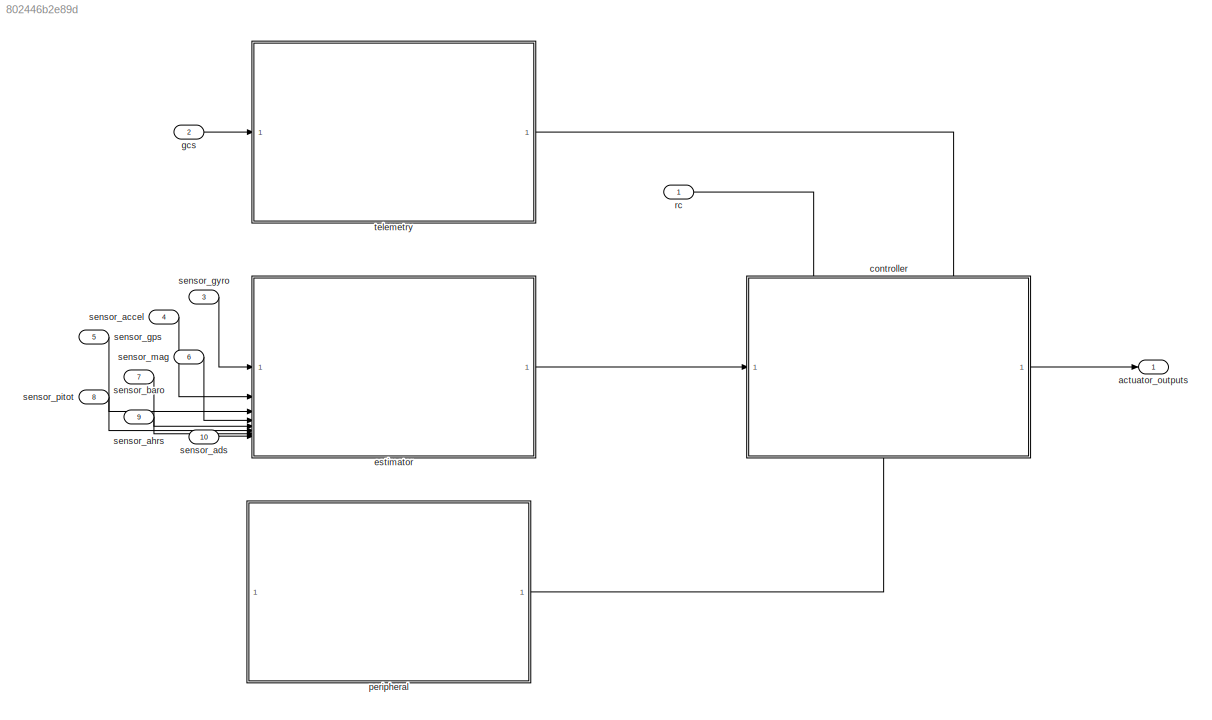
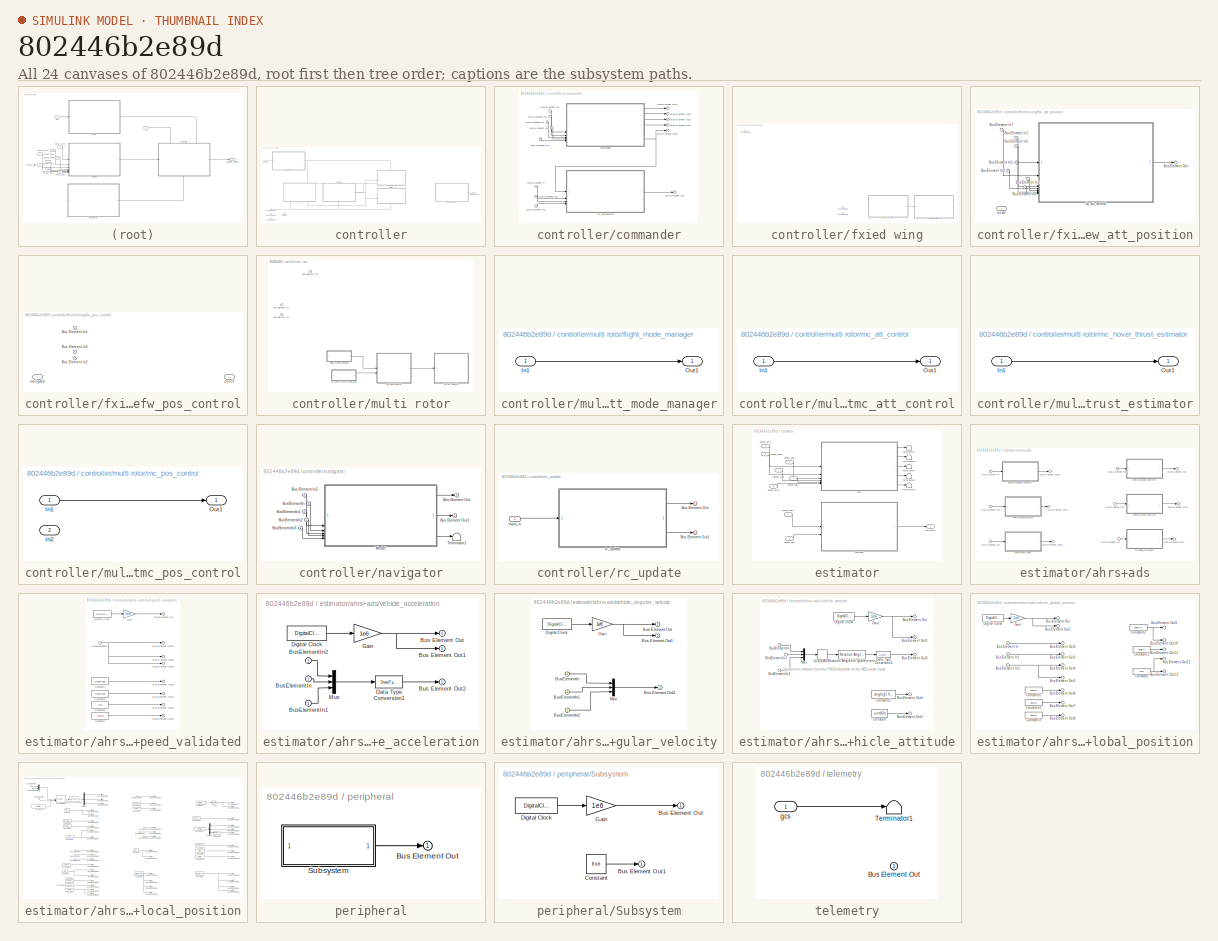
[diagram: thumbnail index - all 24 canvases of the model, root first then tree order]
MODEL slx_802446b2e89d
KIND model
CONFIG AbsTol = auto
CONFIG EnableMultiTasking = off
CONFIG FixedStep = 5/1000
CONFIG MaxStep = auto
CONFIG MinStep = auto
CONFIG RelTol = 1e-3
CONFIG SampleTimeConstraint = Unconstrained
CONFIG SolverName = FixedStepAuto
CONFIG StartTime = 0.0
CONFIG StopTime = inf
BLOCK [Outport] actuator_outputs
  OutDataTypeStr = Bus: actuator_outputs_s
BLOCK [SubSystem] controller
  PortSchema = {"entries":[{"content":{"sides":[{"content":{"connectorIds":["In1"]},"type":"ConnectorPlacement.EquallySpacedRectSide","uuid":"bf365a7c-3df9-4499-baf0-ac7c3d5a0a14"},{"content":{"connectorIds":["Out1"],"side":"RIGHT"},"type":"ConnectorPlacement.EquallySpacedRectSide","uuid":"09800274-c410-4406-8158-73f19ad533fb"},{"content":{"connectorIds":["In2","In3"],"side":"TOP"},"type":"ConnectorPlacement.Equ...<+400ch>
BLOCK [Inport] controller/Bus Element In
  Port = 3
BLOCK [Inport] controller/Bus Element In1
BLOCK [Inport] controller/Bus Element In3
  Port = 4
BLOCK [Terminator] controller/Terminator
BLOCK [Outport] controller/actuator_output
BLOCK [SubSystem] controller/commander
  PortSchema = {"entries":[{"content":{"sides":[{"content":{},"type":"ConnectorPlacement.EquallySpacedRectSide","uuid":"bf365a7c-3df9-4499-baf0-ac7c3d5a0a14"},{"content":{"side":"RIGHT"},"type":"ConnectorPlacement.EquallySpacedRectSide","uuid":"09800274-c410-4406-8158-73f19ad533fb"},{"content":{"connectorIds":["Out1","In1"],"side":"TOP"},"type":"ConnectorPlacement.EquallySpacedRectSide","uuid":"5f417270-ee37-4bc...<+361ch>
BLOCK [Inport] controller/commander/Bus Element In
  Port = 2
BLOCK [Inport] controller/commander/Bus Element In1
  Port = 2
BLOCK [Inport] controller/commander/Bus Element In2
  Port = 2
BLOCK [Inport] controller/commander/Bus Element In3
  Port = 2
BLOCK [Inport] controller/commander/Bus Element In4
  Port = 2
BLOCK [Inport] controller/commander/Bus Element In5
BLOCK [Inport] controller/commander/Bus Element In6
BLOCK [Inport] controller/commander/Bus Element In7
  Port = 3
BLOCK [Outport] controller/commander/Bus Element Out
BLOCK [Outport] controller/commander/Bus Element Out1
BLOCK [Outport] controller/commander/Bus Element Out2
BLOCK [Outport] controller/commander/Bus Element Out3
BLOCK [Outport] controller/commander/Bus Element Out4
BLOCK [Outport] controller/commander/Bus Element Out5
BLOCK [ModelReference] controller/commander/commander
  ModelNameDialog = commander
  ModelReferenceVersion = 1.352
BLOCK [ModelReference] controller/commander/fw_land_detector
  ModelNameDialog = fw_land_detector.slx
  ModelReferenceVersion = 1.18
BLOCK [ModelReference] controller/fw_simple_mixer
  ModelNameDialog = fw_mixer_output.slx
  ModelReferenceVersion = 1.12
BLOCK [SubSystem] controller/fxied wing
  PortSchema = {"entries":[{"content":{"sides":[{"content":{"connectorIds":["In1","In2"]},"type":"ConnectorPlacement.EquallySpacedRectSide","uuid":"549ec4b7-2508-487f-9311-741c2bb8d680"},{"content":{"side":"RIGHT"},"type":"ConnectorPlacement.EquallySpacedRectSide","uuid":"03f0fe2f-98b5-4ee1-8147-873b6008a7a5"},{"content":{"connectorIds":["In3"],"side":"TOP"},"type":"ConnectorPlacement.EquallySpacedRectSide","uui...<+227ch>
BLOCK [Inport] controller/fxied wing/Bus Element In1
  Port = 2
BLOCK [Inport] controller/fxied wing/Bus Element In2
  Port = 3
BLOCK [Inport] controller/fxied wing/Bus Element In3
BLOCK [SubSystem] controller/fxied wing/fw_att_position
  PortSchema = {"entries":[{"content":{"sides":[{"content":{"connectorIds":["In1"]},"type":"ConnectorPlacement.EquallySpacedRectSide","uuid":"2e5a2222-76bd-46c5-99d4-7bb5e8ecb6d7"},{"content":{"connectorIds":["Out1"],"side":"RIGHT"},"type":"ConnectorPlacement.EquallySpacedRectSide","uuid":"0e63d8b1-5138-4700-95dd-60b21314af32"},{"content":{"connectorIds":["In2","In3"],"side":"TOP"},"type":"ConnectorPlacement.Equ...<+400ch>
BLOCK [Inport] controller/fxied wing/fw_att_position/Bus Element In1
  Port = 2
BLOCK [Inport] controller/fxied wing/fw_att_position/Bus Element In2
  Port = 2
BLOCK [Inport] controller/fxied wing/fw_att_position/Bus Element In3
  Port = 4
BLOCK [Inport] controller/fxied wing/fw_att_position/Bus Element In4
  Port = 4
BLOCK [Inport] controller/fxied wing/fw_att_position/Bus Element In5
  Port = 4
BLOCK [Inport] controller/fxied wing/fw_att_position/Bus Element In6
  Port = 4
BLOCK [Inport] controller/fxied wing/fw_att_position/Bus Element In7
  Port = 3
BLOCK [Outport] controller/fxied wing/fw_att_position/Bus Element Out
BLOCK [ModelReference] controller/fxied wing/fw_att_position/fw_att_control
  ModelNameDialog = fw_att_control.slx
  ModelReferenceVersion = 1.81
  PortSchema = {"entries":[{"content":{"sides":[{"content":{"connectorIds":["In2","In1","In7","In3","In4","In5","In6","In8","In9"]},"type":"ConnectorPlacement.EquallySpacedRectSide","uuid":"a3897952-0f5d-4f6f-be91-4c088f77e763"},{"content":{"connectorIds":["Out1"],"side":"RIGHT"},"type":"ConnectorPlacement.EquallySpacedRectSide","uuid":"30e098fc-1ad2-4a2a-8a05-110c3be1e9a2"},{"content":{"side":"TOP"},"type":"Con...<+270ch>
BLOCK [Inport] controller/fxied wing/fw_att_position/posctr
BLOCK [SubSystem] controller/fxied wing/fw_pos_control
  PortSchema = {"entries":[{"content":{"sides":[{"content":{"connectorIds":["In1"]},"type":"ConnectorPlacement.EquallySpacedRectSide","uuid":"bf365a7c-3df9-4499-baf0-ac7c3d5a0a14"},{"content":{"connectorIds":["Out1"],"side":"RIGHT"},"type":"ConnectorPlacement.EquallySpacedRectSide","uuid":"09800274-c410-4406-8158-73f19ad533fb"},{"content":{"connectorIds":["In2","In3"],"side":"TOP"},"type":"ConnectorPlacement.Equ...<+400ch>
BLOCK [Inport] controller/fxied wing/fw_pos_control/Bus Element In1
  Port = 2
BLOCK [Inport] controller/fxied wing/fw_pos_control/Bus Element In2
  Port = 3
BLOCK [Inport] controller/fxied wing/fw_pos_control/Bus Element In3
  Port = 4
BLOCK [Inport] controller/fxied wing/fw_pos_control/navigator
BLOCK [Outport] controller/fxied wing/fw_pos_control/posctr
BLOCK [Inport] controller/input_rc
  Port = 2
BLOCK [SubSystem] controller/multi rotor
  PortSchema = {"entries":[{"content":{"sides":[{"content":{"connectorIds":["In1","In2"]},"type":"ConnectorPlacement.EquallySpacedRectSide","uuid":"549ec4b7-2508-487f-9311-741c2bb8d680"},{"content":{"side":"RIGHT"},"type":"ConnectorPlacement.EquallySpacedRectSide","uuid":"03f0fe2f-98b5-4ee1-8147-873b6008a7a5"},{"content":{"side":"TOP"},"type":"ConnectorPlacement.EquallySpacedRectSide","uuid":"13073dc7-cc1f-4414-...<+353ch>
BLOCK [Inport] controller/multi rotor/Bus Element In1
  Port = 2
BLOCK [Inport] controller/multi rotor/Bus Element In2
  Port = 3
BLOCK [Inport] controller/multi rotor/Bus Element In3
BLOCK [SubSystem] controller/multi rotor/flight_mode_manager
BLOCK [Inport] controller/multi rotor/flight_mode_manager/In1
BLOCK [Outport] controller/multi rotor/flight_mode_manager/Out1
BLOCK [SubSystem] controller/multi rotor/mc_att_control
BLOCK [Inport] controller/multi rotor/mc_att_control/In1
BLOCK [Outport] controller/multi rotor/mc_att_control/Out1
BLOCK [SubSystem] controller/multi rotor/mc_hover_thrust_estimator
BLOCK [Inport] controller/multi rotor/mc_hover_thrust_estimator/In1
BLOCK [Outport] controller/multi rotor/mc_hover_thrust_estimator/Out1
BLOCK [SubSystem] controller/multi rotor/mc_pos_control
BLOCK [Inport] controller/multi rotor/mc_pos_control/In1
BLOCK [Inport] controller/multi rotor/mc_pos_control/In2
  Port = 2
BLOCK [Outport] controller/multi rotor/mc_pos_control/Out1
BLOCK [SubSystem] controller/navigator
  PortSchema = {"entries":[{"content":{"sides":[{"content":{},"type":"ConnectorPlacement.EquallySpacedRectSide","uuid":"bf365a7c-3df9-4499-baf0-ac7c3d5a0a14"},{"content":{"connectorIds":["Out1"],"side":"RIGHT"},"type":"ConnectorPlacement.EquallySpacedRectSide","uuid":"09800274-c410-4406-8158-73f19ad533fb"},{"content":{"connectorIds":["In1"],"side":"TOP"},"type":"ConnectorPlacement.EquallySpacedRectSide","uuid":"...<+372ch>
BLOCK [Inport] controller/navigator/Bus Element In2
  Port = 2
BLOCK [Outport] controller/navigator/Bus Element Out
BLOCK [Outport] controller/navigator/Bus Element Out1
BLOCK [Inport] controller/navigator/BusElementIn
  Port = 2
BLOCK [Inport] controller/navigator/BusElementIn1
BLOCK [Inport] controller/navigator/BusElementIn2
BLOCK [Inport] controller/navigator/BusElementIn3
BLOCK [ModelReference] controller/navigator/Model
  ModelNameDialog = navigator
  ModelReferenceVersion = 8.346
  PortSchema = {"entries":[{"content":{"sides":[{"content":{"connectorIds":["In1","In2","In3","In4","In5","In7","In6","In8"]},"type":"ConnectorPlacement.EquallySpacedRectSide","uuid":"8fdc0db3-4faf-4964-996f-bada078e6ff8"},{"content":{"connectorIds":["Out1","Out2","Out3"],"side":"RIGHT"},"type":"ConnectorPlacement.EquallySpacedRectSide","uuid":"b0bd679b-9745-48c6-a927-6af964e70cab"},{"content":{"side":"TOP"},"ty...<+278ch>
BLOCK [Terminator] controller/navigator/Terminator1
BLOCK [SubSystem] controller/rc_update
BLOCK [Outport] controller/rc_update/Bus Element Out
BLOCK [Outport] controller/rc_update/Bus Element Out1
BLOCK [Inport] controller/rc_update/input_rc
BLOCK [ModelReference] controller/rc_update/rc_update
  ModelNameDialog = rc_update
  ModelReferenceVersion = 8.39
BLOCK [SubSystem] estimator
BLOCK [Terminator] estimator/Terminator2
BLOCK [Terminator] estimator/Terminator3
BLOCK [Terminator] estimator/Terminator4
BLOCK [Terminator] estimator/Terminator5
BLOCK [Terminator] estimator/Terminator6
BLOCK [SubSystem] estimator/ahrs+ads
BLOCK [Inport] estimator/ahrs+ads/Bus Element In
BLOCK [Inport] estimator/ahrs+ads/Bus Element In1
  Port = 2
BLOCK [Inport] estimator/ahrs+ads/Bus Element In2
BLOCK [Inport] estimator/ahrs+ads/Bus Element In3
BLOCK [Inport] estimator/ahrs+ads/Bus Element In4
BLOCK [Inport] estimator/ahrs+ads/Bus Element In5
BLOCK [Outport] estimator/ahrs+ads/Bus Element Out
BLOCK [Outport] estimator/ahrs+ads/Bus Element Out1
BLOCK [Outport] estimator/ahrs+ads/Bus Element Out2
BLOCK [Outport] estimator/ahrs+ads/Bus Element Out3
BLOCK [Outport] estimator/ahrs+ads/Bus Element Out4
BLOCK [Outport] estimator/ahrs+ads/Bus Element Out5
BLOCK [SubSystem] estimator/ahrs+ads/airspeed_validated
BLOCK [Outport] estimator/ahrs+ads/airspeed_validated/Bus Element Out
BLOCK [Outport] estimator/ahrs+ads/airspeed_validated/Bus Element Out27
BLOCK [Outport] estimator/ahrs+ads/airspeed_validated/Bus Element Out28
BLOCK [Outport] estimator/ahrs+ads/airspeed_validated/Bus Element Out29
BLOCK [Outport] estimator/ahrs+ads/airspeed_validated/Bus Element Out30
BLOCK [Outport] estimator/ahrs+ads/airspeed_validated/Bus Element Out31
BLOCK [Outport] estimator/ahrs+ads/airspeed_validated/Bus Element Out32
BLOCK [Outport] estimator/ahrs+ads/airspeed_validated/Bus Element Out33
BLOCK [Inport] estimator/ahrs+ads/airspeed_validated/BusElementIn
BLOCK [Constant] estimator/ahrs+ads/airspeed_validated/Constant1
  Value = single(nan)
BLOCK [Constant] estimator/ahrs+ads/airspeed_validated/Constant5
  Value = single(nan)
BLOCK [Constant] estimator/ahrs+ads/airspeed_validated/Constant6
  Value = true
BLOCK [Constant] estimator/ahrs+ads/airspeed_validated/Constant7
  Value = int8(0)
BLOCK [DigitalClock] estimator/ahrs+ads/airspeed_validated/Digital Clock
BLOCK [Gain] estimator/ahrs+ads/airspeed_validated/Gain
  Gain = 1e6
  OutDataTypeStr = uint64
BLOCK [SubSystem] estimator/ahrs+ads/vehicle_acceleration
BLOCK [Outport] estimator/ahrs+ads/vehicle_acceleration/Bus Element Out
BLOCK [Outport] estimator/ahrs+ads/vehicle_acceleration/Bus Element Out1
BLOCK [Outport] estimator/ahrs+ads/vehicle_acceleration/Bus Element Out2
BLOCK [Inport] estimator/ahrs+ads/vehicle_acceleration/BusElementIn
BLOCK [Inport] estimator/ahrs+ads/vehicle_acceleration/BusElementIn1
BLOCK [Inport] estimator/ahrs+ads/vehicle_acceleration/BusElementIn2
BLOCK [DataTypeConversion] estimator/ahrs+ads/vehicle_acceleration/Data Type Conversion1
  OutDataTypeStr = single
  RndMeth = Floor
  SaturateOnIntegerOverflow = off
BLOCK [DigitalClock] estimator/ahrs+ads/vehicle_acceleration/Digital Clock
BLOCK [Gain] estimator/ahrs+ads/vehicle_acceleration/Gain
  Gain = 1e6
  OutDataTypeStr = uint64
BLOCK [Mux] estimator/ahrs+ads/vehicle_acceleration/Mux
  DisplayOption = bar
  Inputs = 3
BLOCK [SubSystem] estimator/ahrs+ads/vehicle_angular_velocity
BLOCK [Outport] estimator/ahrs+ads/vehicle_angular_velocity/Bus Element Out
BLOCK [Outport] estimator/ahrs+ads/vehicle_angular_velocity/Bus Element Out1
BLOCK [Outport] estimator/ahrs+ads/vehicle_angular_velocity/Bus Element Out2
BLOCK [Inport] estimator/ahrs+ads/vehicle_angular_velocity/BusElementIn
BLOCK [Inport] estimator/ahrs+ads/vehicle_angular_velocity/BusElementIn1
BLOCK [Inport] estimator/ahrs+ads/vehicle_angular_velocity/BusElementIn2
BLOCK [DigitalClock] estimator/ahrs+ads/vehicle_angular_velocity/Digital Clock
BLOCK [Gain] estimator/ahrs+ads/vehicle_angular_velocity/Gain
  Gain = 1e6
  OutDataTypeStr = uint64
BLOCK [Mux] estimator/ahrs+ads/vehicle_angular_velocity/Mux
  DisplayOption = bar
  Inputs = 3
BLOCK [SubSystem] estimator/ahrs+ads/vehicle_attitude
BLOCK [Outport] estimator/ahrs+ads/vehicle_attitude/Bus Element Out
BLOCK [Outport] estimator/ahrs+ads/vehicle_attitude/Bus Element Out1
BLOCK [Outport] estimator/ahrs+ads/vehicle_attitude/Bus Element Out3
BLOCK [Outport] estimator/ahrs+ads/vehicle_attitude/Bus Element Out4
BLOCK [Outport] estimator/ahrs+ads/vehicle_attitude/Bus Element Out5
BLOCK [Inport] estimator/ahrs+ads/vehicle_attitude/BusElementIn
BLOCK [Inport] estimator/ahrs+ads/vehicle_attitude/BusElementIn1
BLOCK [Inport] estimator/ahrs+ads/vehicle_attitude/BusElementIn2
BLOCK [Constant] estimator/ahrs+ads/vehicle_attitude/Constant
  Value = uint8(0)
BLOCK [Constant] estimator/ahrs+ads/vehicle_attitude/Constant1
  Value = single([1 0 0 0])
BLOCK [DataTypeConversion] estimator/ahrs+ads/vehicle_attitude/Data Type Conversion1
  OutDataTypeStr = single
  RndMeth = Floor
  SaturateOnIntegerOverflow = off
BLOCK [DigitalClock] estimator/ahrs+ads/vehicle_attitude/Digital Clock
BLOCK [Gain] estimator/ahrs+ads/vehicle_attitude/Gain
  Gain = 1e6
  OutDataTypeStr = uint64
BLOCK [Mux] estimator/ahrs+ads/vehicle_attitude/Mux
  DisplayOption = bar
  Inputs = 3
BLOCK [Reference] estimator/ahrs+ads/vehicle_attitude/Rotation Angles to Quaternions  REF=sharedtransform/Rotation Angles to Quaternions
  AttributesFormatString = Rotation Order: %<rotationOrder>
  SourceBlock = sharedtransform/Rotation Angles to Quaternions
  SourceType = Ang2Quat
BLOCK [UnaryMinus] estimator/ahrs+ads/vehicle_attitude/Unary Minus
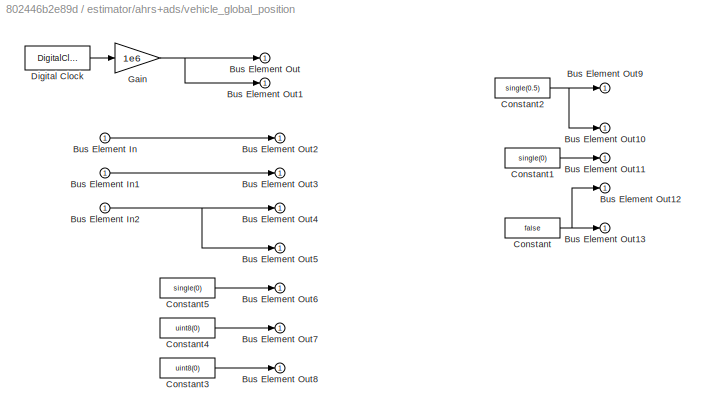
BLOCK [SubSystem] estimator/ahrs+ads/vehicle_global_position
BLOCK [Inport] estimator/ahrs+ads/vehicle_global_position/Bus Element In
BLOCK [Inport] estimator/ahrs+ads/vehicle_global_position/Bus Element In1
BLOCK [Inport] estimator/ahrs+ads/vehicle_global_position/Bus Element In2
BLOCK [Outport] estimator/ahrs+ads/vehicle_global_position/Bus Element Out
BLOCK [Outport] estimator/ahrs+ads/vehicle_global_position/Bus Element Out1
BLOCK [Outport] estimator/ahrs+ads/vehicle_global_position/Bus Element Out10
BLOCK [Outport] estimator/ahrs+ads/vehicle_global_position/Bus Element Out11
BLOCK [Outport] estimator/ahrs+ads/vehicle_global_position/Bus Element Out12
BLOCK [Outport] estimator/ahrs+ads/vehicle_global_position/Bus Element Out13
BLOCK [Outport] estimator/ahrs+ads/vehicle_global_position/Bus Element Out2
BLOCK [Outport] estimator/ahrs+ads/vehicle_global_position/Bus Element Out3
BLOCK [Outport] estimator/ahrs+ads/vehicle_global_position/Bus Element Out4
BLOCK [Outport] estimator/ahrs+ads/vehicle_global_position/Bus Element Out5
BLOCK [Outport] estimator/ahrs+ads/vehicle_global_position/Bus Element Out6
BLOCK [Outport] estimator/ahrs+ads/vehicle_global_position/Bus Element Out7
BLOCK [Outport] estimator/ahrs+ads/vehicle_global_position/Bus Element Out8
BLOCK [Outport] estimator/ahrs+ads/vehicle_global_position/Bus Element Out9
BLOCK [Constant] estimator/ahrs+ads/vehicle_global_position/Constant
  Value = false
BLOCK [Constant] estimator/ahrs+ads/vehicle_global_position/Constant1
  Value = single(0)
BLOCK [Constant] estimator/ahrs+ads/vehicle_global_position/Constant2
  Value = single(0.5)
BLOCK [Constant] estimator/ahrs+ads/vehicle_global_position/Constant3
  Value = uint8(0)
BLOCK [Constant] estimator/ahrs+ads/vehicle_global_position/Constant4
  Value = uint8(0)
BLOCK [Constant] estimator/ahrs+ads/vehicle_global_position/Constant5
  Value = single(0)
BLOCK [DigitalClock] estimator/ahrs+ads/vehicle_global_position/Digital Clock
BLOCK [Gain] estimator/ahrs+ads/vehicle_global_position/Gain
  Gain = 1e6
  OutDataTypeStr = uint64
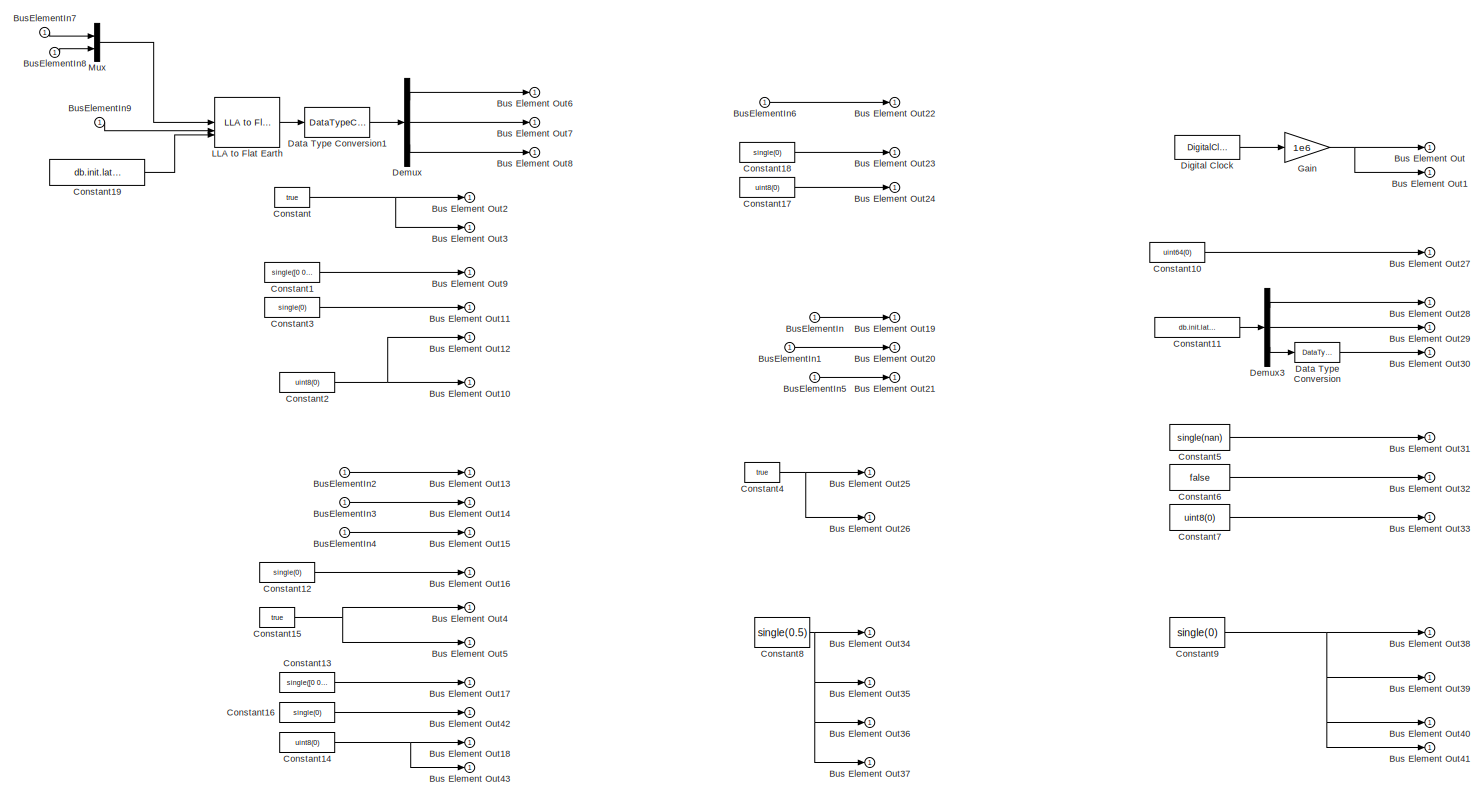
[diagram: estimator/ahrs+ads/vehicle_local_position - part 1/1, most of the canvas]
BLOCK [SubSystem] estimator/ahrs+ads/vehicle_local_position
BLOCK [Outport] estimator/ahrs+ads/vehicle_local_position/Bus Element Out
BLOCK [Outport] estimator/ahrs+ads/vehicle_local_position/Bus Element Out1
BLOCK [Outport] estimator/ahrs+ads/vehicle_local_position/Bus Element Out10
BLOCK [Outport] estimator/ahrs+ads/vehicle_local_position/Bus Element Out11
BLOCK [Outport] estimator/ahrs+ads/vehicle_local_position/Bus Element Out12
BLOCK [Outport] estimator/ahrs+ads/vehicle_local_position/Bus Element Out13
BLOCK [Outport] estimator/ahrs+ads/vehicle_local_position/Bus Element Out14
BLOCK [Outport] estimator/ahrs+ads/vehicle_local_position/Bus Element Out15
BLOCK [Outport] estimator/ahrs+ads/vehicle_local_position/Bus Element Out16
BLOCK [Outport] estimator/ahrs+ads/vehicle_local_position/Bus Element Out17
BLOCK [Outport] estimator/ahrs+ads/vehicle_local_position/Bus Element Out18
BLOCK [Outport] estimator/ahrs+ads/vehicle_local_position/Bus Element Out19
BLOCK [Outport] estimator/ahrs+ads/vehicle_local_position/Bus Element Out2
BLOCK [Outport] estimator/ahrs+ads/vehicle_local_position/Bus Element Out20
BLOCK [Outport] estimator/ahrs+ads/vehicle_local_position/Bus Element Out21
BLOCK [Outport] estimator/ahrs+ads/vehicle_local_position/Bus Element Out22
BLOCK [Outport] estimator/ahrs+ads/vehicle_local_position/Bus Element Out23
BLOCK [Outport] estimator/ahrs+ads/vehicle_local_position/Bus Element Out24
BLOCK [Outport] estimator/ahrs+ads/vehicle_local_position/Bus Element Out25
BLOCK [Outport] estimator/ahrs+ads/vehicle_local_position/Bus Element Out26
BLOCK [Outport] estimator/ahrs+ads/vehicle_local_position/Bus Element Out27
BLOCK [Outport] estimator/ahrs+ads/vehicle_local_position/Bus Element Out28
BLOCK [Outport] estimator/ahrs+ads/vehicle_local_position/Bus Element Out29
BLOCK [Outport] estimator/ahrs+ads/vehicle_local_position/Bus Element Out3
BLOCK [Outport] estimator/ahrs+ads/vehicle_local_position/Bus Element Out30
BLOCK [Outport] estimator/ahrs+ads/vehicle_local_position/Bus Element Out31
BLOCK [Outport] estimator/ahrs+ads/vehicle_local_position/Bus Element Out32
BLOCK [Outport] estimator/ahrs+ads/vehicle_local_position/Bus Element Out33
BLOCK [Outport] estimator/ahrs+ads/vehicle_local_position/Bus Element Out34
BLOCK [Outport] estimator/ahrs+ads/vehicle_local_position/Bus Element Out35
BLOCK [Outport] estimator/ahrs+ads/vehicle_local_position/Bus Element Out36
BLOCK [Outport] estimator/ahrs+ads/vehicle_local_position/Bus Element Out37
BLOCK [Outport] estimator/ahrs+ads/vehicle_local_position/Bus Element Out38
BLOCK [Outport] estimator/ahrs+ads/vehicle_local_position/Bus Element Out39
BLOCK [Outport] estimator/ahrs+ads/vehicle_local_position/Bus Element Out4
BLOCK [Outport] estimator/ahrs+ads/vehicle_local_position/Bus Element Out40
BLOCK [Outport] estimator/ahrs+ads/vehicle_local_position/Bus Element Out41
BLOCK [Outport] estimator/ahrs+ads/vehicle_local_position/Bus Element Out42
BLOCK [Outport] estimator/ahrs+ads/vehicle_local_position/Bus Element Out43
BLOCK [Outport] estimator/ahrs+ads/vehicle_local_position/Bus Element Out5
BLOCK [Outport] estimator/ahrs+ads/vehicle_local_position/Bus Element Out6
BLOCK [Outport] estimator/ahrs+ads/vehicle_local_position/Bus Element Out7
BLOCK [Outport] estimator/ahrs+ads/vehicle_local_position/Bus Element Out8
BLOCK [Outport] estimator/ahrs+ads/vehicle_local_position/Bus Element Out9
BLOCK [Inport] estimator/ahrs+ads/vehicle_local_position/BusElementIn
BLOCK [Inport] estimator/ahrs+ads/vehicle_local_position/BusElementIn1
BLOCK [Inport] estimator/ahrs+ads/vehicle_local_position/BusElementIn2
BLOCK [Inport] estimator/ahrs+ads/vehicle_local_position/BusElementIn3
BLOCK [Inport] estimator/ahrs+ads/vehicle_local_position/BusElementIn4
BLOCK [Inport] estimator/ahrs+ads/vehicle_local_position/BusElementIn5
BLOCK [Inport] estimator/ahrs+ads/vehicle_local_position/BusElementIn6
BLOCK [Inport] estimator/ahrs+ads/vehicle_local_position/BusElementIn7
BLOCK [Inport] estimator/ahrs+ads/vehicle_local_position/BusElementIn8
BLOCK [Inport] estimator/ahrs+ads/vehicle_local_position/BusElementIn9
BLOCK [Constant] estimator/ahrs+ads/vehicle_local_position/Constant
  Value = true
BLOCK [Constant] estimator/ahrs+ads/vehicle_local_position/Constant1
  Value = single([0 0])
BLOCK [Constant] estimator/ahrs+ads/vehicle_local_position/Constant10
  Value = uint64(0)
BLOCK [Constant] estimator/ahrs+ads/vehicle_local_position/Constant11
  Value = db.init.lat_lon_alt
BLOCK [Constant] estimator/ahrs+ads/vehicle_local_position/Constant12
  Value = single(0)
BLOCK [Constant] estimator/ahrs+ads/vehicle_local_position/Constant13
  Value = single([0 0])
BLOCK [Constant] estimator/ahrs+ads/vehicle_local_position/Constant14
  Value = uint8(0)
BLOCK [Constant] estimator/ahrs+ads/vehicle_local_position/Constant15
  Value = true
BLOCK [Constant] estimator/ahrs+ads/vehicle_local_position/Constant16
  Value = single(0)
BLOCK [Constant] estimator/ahrs+ads/vehicle_local_position/Constant17
  Value = uint8(0)
BLOCK [Constant] estimator/ahrs+ads/vehicle_local_position/Constant18
  Value = single(0)
BLOCK [Constant] estimator/ahrs+ads/vehicle_local_position/Constant19
  Value = db.init.lat_lon_alt(3)
BLOCK [Constant] estimator/ahrs+ads/vehicle_local_position/Constant2
  Value = uint8(0)
BLOCK [Constant] estimator/ahrs+ads/vehicle_local_position/Constant3
  Value = single(0)
BLOCK [Constant] estimator/ahrs+ads/vehicle_local_position/Constant4
  Value = true
BLOCK [Constant] estimator/ahrs+ads/vehicle_local_position/Constant5
  Value = single(nan)
BLOCK [Constant] estimator/ahrs+ads/vehicle_local_position/Constant6
  Value = false
BLOCK [Constant] estimator/ahrs+ads/vehicle_local_position/Constant7
  Value = uint8(0)
BLOCK [Constant] estimator/ahrs+ads/vehicle_local_position/Constant8
  Value = single(0.5)
BLOCK [Constant] estimator/ahrs+ads/vehicle_local_position/Constant9
  Value = single(0)
BLOCK [DataTypeConversion] estimator/ahrs+ads/vehicle_local_position/Data Type Conversion
  OutDataTypeStr = single
  RndMeth = Floor
  SaturateOnIntegerOverflow = off
BLOCK [DataTypeConversion] estimator/ahrs+ads/vehicle_local_position/Data Type Conversion1
  OutDataTypeStr = single
  RndMeth = Floor
  SaturateOnIntegerOverflow = off
BLOCK [Demux] estimator/ahrs+ads/vehicle_local_position/Demux
  Outputs = 3
BLOCK [Demux] estimator/ahrs+ads/vehicle_local_position/Demux3
  Outputs = 3
BLOCK [DigitalClock] estimator/ahrs+ads/vehicle_local_position/Digital Clock
BLOCK [Gain] estimator/ahrs+ads/vehicle_local_position/Gain
  Gain = 1e6
  OutDataTypeStr = uint64
BLOCK [Reference] estimator/ahrs+ads/vehicle_local_position/LLA to Flat Earth  REF=aerolibtransform2/LLA to Flat Earth
  SourceBlock = aerolibtransform2/LLA to Flat Earth
  SourceType = LLA to Flat Earth
BLOCK [Mux] estimator/ahrs+ads/vehicle_local_position/Mux
  DisplayOption = bar
  Inputs = 2
BLOCK [ModelReference] estimator/ekf2
  ModelNameDialog = ekf2.slx
  ModelReferenceVersion = 1.16
  PortSchema = {"entries":[{"content":{"sides":[{"content":{"connectorIds":["In1","In2","In3","In4","In5","In6"]},"type":"ConnectorPlacement.EquallySpacedRectSide","uuid":"530c6754-b0c0-41ce-ae9a-e56605d3448f"},{"content":{"connectorIds":["Out1","Out2","Out3","Out5","Out4"],"side":"RIGHT"},"type":"ConnectorPlacement.EquallySpacedRectSide","uuid":"c5c6cdfe-97c8-4b0f-ac33-5a0cc586973e"},{"content":{"side":"TOP"},"...<+280ch>
BLOCK [Outport] estimator/estimator
BLOCK [Inport] estimator/sensor_accel
  Port = 2
BLOCK [Inport] estimator/sensor_ads
  Port = 8
BLOCK [Inport] estimator/sensor_ahrs
  Port = 7
BLOCK [Inport] estimator/sensor_baro
  Port = 5
BLOCK [Inport] estimator/sensor_gps
  Port = 3
BLOCK [Inport] estimator/sensor_gyro
BLOCK [Inport] estimator/sensor_mag
  Port = 4
BLOCK [Inport] estimator/sensor_pitot
  Port = 6
BLOCK [Inport] gcs
  Port = 2
BLOCK [SubSystem] peripheral
BLOCK [Outport] peripheral/Bus Element Out
BLOCK [SubSystem] peripheral/Subsystem
BLOCK [Outport] peripheral/Subsystem/Bus Element Out
BLOCK [Outport] peripheral/Subsystem/Bus Element Out1
BLOCK [Constant] peripheral/Subsystem/Constant
  Value = true
BLOCK [DigitalClock] peripheral/Subsystem/Digital Clock
BLOCK [Gain] peripheral/Subsystem/Gain
  Gain = 1e6
  OutDataTypeStr = uint64
BLOCK [Inport] rc
  OutDataTypeStr = Bus: input_rc_s
BLOCK [Inport] sensor_accel
  NameLocation = left
  OutDataTypeStr = Bus: sensor_accel_s
  Port = 4
BLOCK [Inport] sensor_ads
  NameLocation = left
  OutDataTypeStr = Bus: sensor_ads_s
  Port = 10
BLOCK [Inport] sensor_ahrs
  NameLocation = left
  OutDataTypeStr = Bus: sensor_ahrs_s
  Port = 9
BLOCK [Inport] sensor_baro
  NameLocation = left
  OutDataTypeStr = Bus: sensor_baro_s
  Port = 7
BLOCK [Inport] sensor_gps
  NameLocation = left
  OutDataTypeStr = Bus: sensor_gps_s
  Port = 5
BLOCK [Inport] sensor_gyro
  NameLocation = left
  OutDataTypeStr = Bus: sensor_gyro_s
  Port = 3
BLOCK [Inport] sensor_mag
  NameLocation = left
  OutDataTypeStr = Bus: sensor_mag_s
  Port = 6
BLOCK [Inport] sensor_pitot
  NameLocation = left
  OutDataTypeStr = Bus: differential_pressure_s
  Port = 8
BLOCK [SubSystem] telemetry
BLOCK [Outport] telemetry/Bus Element Out
BLOCK [Terminator] telemetry/Terminator1
BLOCK [Inport] telemetry/gcs
ANNOTATION estimator/ahrs+ads/vehicle_attitude: Quaternion rotation from the FRD body frame to the NED earth frame
NET controller/Bus Element In1:1 -> controller/commander:2, controller/multi rotor:3, controller/navigator:2
LINE controller/commander/Bus Element In1:1 -> controller/commander/fw_land_detector:3
LINE controller/commander/Bus Element In2:1 -> controller/commander/fw_land_detector:4
LINE controller/commander/Bus Element In3:1 -> controller/commander/commander:5
LINE controller/commander/Bus Element In4:1 -> controller/commander/commander:4
LINE controller/commander/Bus Element In5:1 -> controller/commander/commander:2
LINE controller/commander/Bus Element In6:1 -> controller/commander/commander:3
LINE controller/commander/Bus Element In7:1 -> controller/commander/commander:7
LINE controller/commander/Bus Element In:1 -> controller/commander/fw_land_detector:2
LINE controller/commander/commander:1 -> controller/commander/Bus Element Out1:1
LINE controller/commander/commander:2 -> controller/commander/Bus Element Out2:1
LINE controller/commander/commander:3 -> controller/commander/Bus Element Out3:1
LINE controller/commander/commander:4 -> controller/commander/Bus Element Out4:1
NET controller/commander/commander:5 -> controller/commander/Bus Element Out5:1, controller/commander/fw_land_detector:1
LINE controller/commander/fw_land_detector:1 -> controller/commander/Bus Element Out:1
NET controller/commander:1 -> controller/fxied wing:1, controller/multi rotor:1, controller/navigator:1
LINE controller/fw_simple_mixer:1 -> controller/actuator_output:1
LINE controller/fxied wing/fw_att_position/Bus Element In1:1 -> controller/fxied wing/fw_att_position/fw_att_control:1
LINE controller/fxied wing/fw_att_position/Bus Element In2:1 -> controller/fxied wing/fw_att_position/fw_att_control:7
LINE controller/fxied wing/fw_att_position/Bus Element In3:1 -> controller/fxied wing/fw_att_position/fw_att_control:6
LINE controller/fxied wing/fw_att_position/Bus Element In4:1 -> controller/fxied wing/fw_att_position/fw_att_control:5
LINE controller/fxied wing/fw_att_position/Bus Element In5:1 -> controller/fxied wing/fw_att_position/fw_att_control:4
LINE controller/fxied wing/fw_att_position/Bus Element In6:1 -> controller/fxied wing/fw_att_position/fw_att_control:8
LINE controller/fxied wing/fw_att_position/Bus Element In7:1 -> controller/fxied wing/fw_att_position/fw_att_control:2
LINE controller/fxied wing/fw_att_position/fw_att_control:1 -> controller/fxied wing/fw_att_position/Bus Element Out:1
LINE controller/fxied wing/fw_pos_control:1 -> controller/fxied wing/fw_att_position:1
LINE controller/input_rc:1 -> controller/rc_update:1
LINE controller/multi rotor/flight_mode_manager/In1:1 -> controller/multi rotor/flight_mode_manager/Out1:1
LINE controller/multi rotor/flight_mode_manager:1 -> controller/multi rotor/mc_pos_control:1
LINE controller/multi rotor/mc_att_control/In1:1 -> controller/multi rotor/mc_att_control/Out1:1
LINE controller/multi rotor/mc_hover_thrust_estimator/In1:1 -> controller/multi rotor/mc_hover_thrust_estimator/Out1:1
LINE controller/multi rotor/mc_hover_thrust_estimator:1 -> controller/multi rotor/mc_pos_control:2
LINE controller/multi rotor/mc_pos_control/In1:1 -> controller/multi rotor/mc_pos_control/Out1:1
LINE controller/multi rotor/mc_pos_control:1 -> controller/multi rotor/mc_att_control:1
LINE controller/navigator/Bus Element In2:1 -> controller/navigator/Model:2
LINE controller/navigator/BusElementIn1:1 -> controller/navigator/Model:4
LINE controller/navigator/BusElementIn2:1 -> controller/navigator/Model:5
LINE controller/navigator/BusElementIn3:1 -> controller/navigator/Model:7
LINE controller/navigator/BusElementIn:1 -> controller/navigator/Model:3
LINE controller/navigator/Model:1 -> controller/navigator/Bus Element Out:1
LINE controller/navigator/Model:2 -> controller/navigator/Bus Element Out1:1
LINE controller/navigator/Model:3 -> controller/navigator/Terminator1:1
NET controller/navigator:1 -> controller/commander:3, controller/fxied wing:2, controller/multi rotor:2
LINE controller/rc_update/input_rc:1 -> controller/rc_update/rc_update:1
LINE controller/rc_update/rc_update:1 -> controller/rc_update/Bus Element Out:1
LINE controller/rc_update/rc_update:2 -> controller/rc_update/Bus Element Out1:1
NET controller/rc_update:1 -> controller/commander:1, controller/fxied wing:3
LINE controller:1 -> actuator_outputs:1
LINE estimator/ahrs+ads/Bus Element In1:1 -> estimator/ahrs+ads/airspeed_validated:1
LINE estimator/ahrs+ads/Bus Element In2:1 -> estimator/ahrs+ads/vehicle_acceleration:1
LINE estimator/ahrs+ads/Bus Element In3:1 -> estimator/ahrs+ads/vehicle_attitude:1
LINE estimator/ahrs+ads/Bus Element In4:1 -> estimator/ahrs+ads/vehicle_global_position:1
LINE estimator/ahrs+ads/Bus Element In5:1 -> estimator/ahrs+ads/vehicle_local_position:1
LINE estimator/ahrs+ads/Bus Element In:1 -> estimator/ahrs+ads/vehicle_angular_velocity:1
NET estimator/ahrs+ads/airspeed_validated/BusElementIn:1 -> estimator/ahrs+ads/airspeed_validated/Bus Element Out27:1, estimator/ahrs+ads/airspeed_validated/Bus Element Out28:1, estimator/ahrs+ads/airspeed_validated/Bus Element Out29:1
LINE estimator/ahrs+ads/airspeed_validated/Constant1:1 -> estimator/ahrs+ads/airspeed_validated/Bus Element Out30:1
LINE estimator/ahrs+ads/airspeed_validated/Constant5:1 -> estimator/ahrs+ads/airspeed_validated/Bus Element Out31:1
LINE estimator/ahrs+ads/airspeed_validated/Constant6:1 -> estimator/ahrs+ads/airspeed_validated/Bus Element Out32:1
LINE estimator/ahrs+ads/airspeed_validated/Constant7:1 -> estimator/ahrs+ads/airspeed_validated/Bus Element Out33:1
LINE estimator/ahrs+ads/airspeed_validated/Digital Clock:1 -> estimator/ahrs+ads/airspeed_validated/Gain:1
LINE estimator/ahrs+ads/airspeed_validated/Gain:1 -> estimator/ahrs+ads/airspeed_validated/Bus Element Out:1
LINE estimator/ahrs+ads/airspeed_validated:1 -> estimator/ahrs+ads/Bus Element Out2:1
LINE estimator/ahrs+ads/vehicle_acceleration/BusElementIn1:1 -> estimator/ahrs+ads/vehicle_acceleration/Mux:3
LINE estimator/ahrs+ads/vehicle_acceleration/BusElementIn2:1 -> estimator/ahrs+ads/vehicle_acceleration/Mux:1
LINE estimator/ahrs+ads/vehicle_acceleration/BusElementIn:1 -> estimator/ahrs+ads/vehicle_acceleration/Mux:2
LINE estimator/ahrs+ads/vehicle_acceleration/Data Type Conversion1:1 -> estimator/ahrs+ads/vehicle_acceleration/Bus Element Out2:1
LINE estimator/ahrs+ads/vehicle_acceleration/Digital Clock:1 -> estimator/ahrs+ads/vehicle_acceleration/Gain:1
NET estimator/ahrs+ads/vehicle_acceleration/Gain:1 -> estimator/ahrs+ads/vehicle_acceleration/Bus Element Out1:1, estimator/ahrs+ads/vehicle_acceleration/Bus Element Out:1
LINE estimator/ahrs+ads/vehicle_acceleration/Mux:1 -> estimator/ahrs+ads/vehicle_acceleration/Data Type Conversion1:1
LINE estimator/ahrs+ads/vehicle_acceleration:1 -> estimator/ahrs+ads/Bus Element Out4:1
LINE estimator/ahrs+ads/vehicle_angular_velocity/BusElementIn1:1 -> estimator/ahrs+ads/vehicle_angular_velocity/Mux:2
LINE estimator/ahrs+ads/vehicle_angular_velocity/BusElementIn2:1 -> estimator/ahrs+ads/vehicle_angular_velocity/Mux:3
LINE estimator/ahrs+ads/vehicle_angular_velocity/BusElementIn:1 -> estimator/ahrs+ads/vehicle_angular_velocity/Mux:1
LINE estimator/ahrs+ads/vehicle_angular_velocity/Digital Clock:1 -> estimator/ahrs+ads/vehicle_angular_velocity/Gain:1
NET estimator/ahrs+ads/vehicle_angular_velocity/Gain:1 -> estimator/ahrs+ads/vehicle_angular_velocity/Bus Element Out1:1, estimator/ahrs+ads/vehicle_angular_velocity/Bus Element Out:1
LINE estimator/ahrs+ads/vehicle_angular_velocity/Mux:1 -> estimator/ahrs+ads/vehicle_angular_velocity/Bus Element Out2:1
LINE estimator/ahrs+ads/vehicle_angular_velocity:1 -> estimator/ahrs+ads/Bus Element Out3:1
LINE estimator/ahrs+ads/vehicle_attitude/BusElementIn1:1 -> estimator/ahrs+ads/vehicle_attitude/Mux:2
LINE estimator/ahrs+ads/vehicle_attitude/BusElementIn2:1 -> estimator/ahrs+ads/vehicle_attitude/Mux:3
LINE estimator/ahrs+ads/vehicle_attitude/BusElementIn:1 -> estimator/ahrs+ads/vehicle_attitude/Mux:1
LINE estimator/ahrs+ads/vehicle_attitude/Constant1:1 -> estimator/ahrs+ads/vehicle_attitude/Bus Element Out4:1
LINE estimator/ahrs+ads/vehicle_attitude/Constant:1 -> estimator/ahrs+ads/vehicle_attitude/Bus Element Out5:1
LINE estimator/ahrs+ads/vehicle_attitude/Data Type Conversion1:1 -> estimator/ahrs+ads/vehicle_attitude/Bus Element Out3:1
LINE estimator/ahrs+ads/vehicle_attitude/Digital Clock:1 -> estimator/ahrs+ads/vehicle_attitude/Gain:1
NET estimator/ahrs+ads/vehicle_attitude/Gain:1 -> estimator/ahrs+ads/vehicle_attitude/Bus Element Out1:1, estimator/ahrs+ads/vehicle_attitude/Bus Element Out:1
LINE estimator/ahrs+ads/vehicle_attitude/Mux:1 -> estimator/ahrs+ads/vehicle_attitude/Unary Minus:1
LINE estimator/ahrs+ads/vehicle_attitude/Rotation Angles to Quaternions:1 -> estimator/ahrs+ads/vehicle_attitude/Data Type Conversion1:1
LINE estimator/ahrs+ads/vehicle_attitude/Unary Minus:1 -> estimator/ahrs+ads/vehicle_attitude/Rotation Angles to Quaternions:1
LINE estimator/ahrs+ads/vehicle_attitude:1 -> estimator/ahrs+ads/Bus Element Out5:1
LINE estimator/ahrs+ads/vehicle_global_position/Bus Element In1:1 -> estimator/ahrs+ads/vehicle_global_position/Bus Element Out3:1
NET estimator/ahrs+ads/vehicle_global_position/Bus Element In2:1 -> estimator/ahrs+ads/vehicle_global_position/Bus Element Out4:1, estimator/ahrs+ads/vehicle_global_position/Bus Element Out5:1
LINE estimator/ahrs+ads/vehicle_global_position/Bus Element In:1 -> estimator/ahrs+ads/vehicle_global_position/Bus Element Out2:1
LINE estimator/ahrs+ads/vehicle_global_position/Constant1:1 -> estimator/ahrs+ads/vehicle_global_position/Bus Element Out11:1
NET estimator/ahrs+ads/vehicle_global_position/Constant2:1 -> estimator/ahrs+ads/vehicle_global_position/Bus Element Out10:1, estimator/ahrs+ads/vehicle_global_position/Bus Element Out9:1
LINE estimator/ahrs+ads/vehicle_global_position/Constant3:1 -> estimator/ahrs+ads/vehicle_global_position/Bus Element Out8:1
LINE estimator/ahrs+ads/vehicle_global_position/Constant4:1 -> estimator/ahrs+ads/vehicle_global_position/Bus Element Out7:1
LINE estimator/ahrs+ads/vehicle_global_position/Constant5:1 -> estimator/ahrs+ads/vehicle_global_position/Bus Element Out6:1
NET estimator/ahrs+ads/vehicle_global_position/Constant:1 -> estimator/ahrs+ads/vehicle_global_position/Bus Element Out12:1, estimator/ahrs+ads/vehicle_global_position/Bus Element Out13:1
LINE estimator/ahrs+ads/vehicle_global_position/Digital Clock:1 -> estimator/ahrs+ads/vehicle_global_position/Gain:1
NET estimator/ahrs+ads/vehicle_global_position/Gain:1 -> estimator/ahrs+ads/vehicle_global_position/Bus Element Out1:1, estimator/ahrs+ads/vehicle_global_position/Bus Element Out:1
LINE estimator/ahrs+ads/vehicle_global_position:1 -> estimator/ahrs+ads/Bus Element Out:1
LINE estimator/ahrs+ads/vehicle_local_position/BusElementIn1:1 -> estimator/ahrs+ads/vehicle_local_position/Bus Element Out20:1
LINE estimator/ahrs+ads/vehicle_local_position/BusElementIn2:1 -> estimator/ahrs+ads/vehicle_local_position/Bus Element Out13:1
LINE estimator/ahrs+ads/vehicle_local_position/BusElementIn3:1 -> estimator/ahrs+ads/vehicle_local_position/Bus Element Out14:1
LINE estimator/ahrs+ads/vehicle_local_position/BusElementIn4:1 -> estimator/ahrs+ads/vehicle_local_position/Bus Element Out15:1
LINE estimator/ahrs+ads/vehicle_local_position/BusElementIn5:1 -> estimator/ahrs+ads/vehicle_local_position/Bus Element Out21:1
LINE estimator/ahrs+ads/vehicle_local_position/BusElementIn6:1 -> estimator/ahrs+ads/vehicle_local_position/Bus Element Out22:1
LINE estimator/ahrs+ads/vehicle_local_position/BusElementIn7:1 -> estimator/ahrs+ads/vehicle_local_position/Mux:1
LINE estimator/ahrs+ads/vehicle_local_position/BusElementIn8:1 -> estimator/ahrs+ads/vehicle_local_position/Mux:2
LINE estimator/ahrs+ads/vehicle_local_position/BusElementIn9:1 -> estimator/ahrs+ads/vehicle_local_position/LLA to Flat Earth:2
LINE estimator/ahrs+ads/vehicle_local_position/BusElementIn:1 -> estimator/ahrs+ads/vehicle_local_position/Bus Element Out19:1
LINE estimator/ahrs+ads/vehicle_local_position/Constant10:1 -> estimator/ahrs+ads/vehicle_local_position/Bus Element Out27:1
LINE estimator/ahrs+ads/vehicle_local_position/Constant11:1 -> estimator/ahrs+ads/vehicle_local_position/Demux3:1
LINE estimator/ahrs+ads/vehicle_local_position/Constant12:1 -> estimator/ahrs+ads/vehicle_local_position/Bus Element Out16:1
LINE estimator/ahrs+ads/vehicle_local_position/Constant13:1 -> estimator/ahrs+ads/vehicle_local_position/Bus Element Out17:1
NET estimator/ahrs+ads/vehicle_local_position/Constant14:1 -> estimator/ahrs+ads/vehicle_local_position/Bus Element Out18:1, estimator/ahrs+ads/vehicle_local_position/Bus Element Out43:1
NET estimator/ahrs+ads/vehicle_local_position/Constant15:1 -> estimator/ahrs+ads/vehicle_local_position/Bus Element Out4:1, estimator/ahrs+ads/vehicle_local_position/Bus Element Out5:1
LINE estimator/ahrs+ads/vehicle_local_position/Constant16:1 -> estimator/ahrs+ads/vehicle_local_position/Bus Element Out42:1
LINE estimator/ahrs+ads/vehicle_local_position/Constant17:1 -> estimator/ahrs+ads/vehicle_local_position/Bus Element Out24:1
LINE estimator/ahrs+ads/vehicle_local_position/Constant18:1 -> estimator/ahrs+ads/vehicle_local_position/Bus Element Out23:1
LINE estimator/ahrs+ads/vehicle_local_position/Constant19:1 -> estimator/ahrs+ads/vehicle_local_position/LLA to Flat Earth:3
LINE estimator/ahrs+ads/vehicle_local_position/Constant1:1 -> estimator/ahrs+ads/vehicle_local_position/Bus Element Out9:1
NET estimator/ahrs+ads/vehicle_local_position/Constant2:1 -> estimator/ahrs+ads/vehicle_local_position/Bus Element Out10:1, estimator/ahrs+ads/vehicle_local_position/Bus Element Out12:1
LINE estimator/ahrs+ads/vehicle_local_position/Constant3:1 -> estimator/ahrs+ads/vehicle_local_position/Bus Element Out11:1
NET estimator/ahrs+ads/vehicle_local_position/Constant4:1 -> estimator/ahrs+ads/vehicle_local_position/Bus Element Out25:1, estimator/ahrs+ads/vehicle_local_position/Bus Element Out26:1
LINE estimator/ahrs+ads/vehicle_local_position/Constant5:1 -> estimator/ahrs+ads/vehicle_local_position/Bus Element Out31:1
LINE estimator/ahrs+ads/vehicle_local_position/Constant6:1 -> estimator/ahrs+ads/vehicle_local_position/Bus Element Out32:1
LINE estimator/ahrs+ads/vehicle_local_position/Constant7:1 -> estimator/ahrs+ads/vehicle_local_position/Bus Element Out33:1
NET estimator/ahrs+ads/vehicle_local_position/Constant8:1 -> estimator/ahrs+ads/vehicle_local_position/Bus Element Out34:1, estimator/ahrs+ads/vehicle_local_position/Bus Element Out35:1, estimator/ahrs+ads/vehicle_local_position/Bus Element Out36:1, estimator/ahrs+ads/vehicle_local_position/Bus Element Out37:1
NET estimator/ahrs+ads/vehicle_local_position/Constant9:1 -> estimator/ahrs+ads/vehicle_local_position/Bus Element Out38:1, estimator/ahrs+ads/vehicle_local_position/Bus Element Out39:1, estimator/ahrs+ads/vehicle_local_position/Bus Element Out40:1, estimator/ahrs+ads/vehicle_local_position/Bus Element Out41:1
NET estimator/ahrs+ads/vehicle_local_position/Constant:1 -> estimator/ahrs+ads/vehicle_local_position/Bus Element Out2:1, estimator/ahrs+ads/vehicle_local_position/Bus Element Out3:1
LINE estimator/ahrs+ads/vehicle_local_position/Data Type Conversion1:1 -> estimator/ahrs+ads/vehicle_local_position/Demux:1
LINE estimator/ahrs+ads/vehicle_local_position/Data Type Conversion:1 -> estimator/ahrs+ads/vehicle_local_position/Bus Element Out30:1
LINE estimator/ahrs+ads/vehicle_local_position/Demux3:1 -> estimator/ahrs+ads/vehicle_local_position/Bus Element Out28:1
LINE estimator/ahrs+ads/vehicle_local_position/Demux3:2 -> estimator/ahrs+ads/vehicle_local_position/Bus Element Out29:1
LINE estimator/ahrs+ads/vehicle_local_position/Demux3:3 -> estimator/ahrs+ads/vehicle_local_position/Data Type Conversion:1
LINE estimator/ahrs+ads/vehicle_local_position/Demux:1 -> estimator/ahrs+ads/vehicle_local_position/Bus Element Out6:1
LINE estimator/ahrs+ads/vehicle_local_position/Demux:2 -> estimator/ahrs+ads/vehicle_local_position/Bus Element Out7:1
LINE estimator/ahrs+ads/vehicle_local_position/Demux:3 -> estimator/ahrs+ads/vehicle_local_position/Bus Element Out8:1
LINE estimator/ahrs+ads/vehicle_local_position/Digital Clock:1 -> estimator/ahrs+ads/vehicle_local_position/Gain:1
NET estimator/ahrs+ads/vehicle_local_position/Gain:1 -> estimator/ahrs+ads/vehicle_local_position/Bus Element Out1:1, estimator/ahrs+ads/vehicle_local_position/Bus Element Out:1
LINE estimator/ahrs+ads/vehicle_local_position/LLA to Flat Earth:1 -> estimator/ahrs+ads/vehicle_local_position/Data Type Conversion1:1
LINE estimator/ahrs+ads/vehicle_local_position/Mux:1 -> estimator/ahrs+ads/vehicle_local_position/LLA to Flat Earth:1
LINE estimator/ahrs+ads/vehicle_local_position:1 -> estimator/ahrs+ads/Bus Element Out1:1
LINE estimator/ahrs+ads:1 -> estimator/estimator:1
LINE estimator/ekf2:1 -> estimator/Terminator2:1
LINE estimator/ekf2:2 -> estimator/Terminator3:1
LINE estimator/ekf2:3 -> estimator/Terminator4:1
LINE estimator/ekf2:4 -> estimator/Terminator6:1
LINE estimator/ekf2:5 -> estimator/Terminator5:1
LINE estimator/sensor_accel:1 -> estimator/ekf2:2
LINE estimator/sensor_ads:1 -> estimator/ahrs+ads:2
LINE estimator/sensor_ahrs:1 -> estimator/ahrs+ads:1
LINE estimator/sensor_baro:1 -> estimator/ekf2:5
LINE estimator/sensor_gps:1 -> estimator/ekf2:3
LINE estimator/sensor_gyro:1 -> estimator/ekf2:1
LINE estimator/sensor_mag:1 -> estimator/ekf2:4
LINE estimator/sensor_pitot:1 -> estimator/ekf2:6
LINE estimator:1 -> controller:1
LINE gcs:1 -> telemetry:1
LINE peripheral/Subsystem/Constant:1 -> peripheral/Subsystem/Bus Element Out1:1
LINE peripheral/Subsystem/Digital Clock:1 -> peripheral/Subsystem/Gain:1
LINE peripheral/Subsystem/Gain:1 -> peripheral/Subsystem/Bus Element Out:1
LINE peripheral/Subsystem:1 -> peripheral/Bus Element Out:1
LINE peripheral:1 -> controller:4
LINE rc:1 -> controller:2
LINE sensor_accel:1 -> estimator:2
LINE sensor_ads:1 -> estimator:8
LINE sensor_ahrs:1 -> estimator:7
LINE sensor_baro:1 -> estimator:5
LINE sensor_gps:1 -> estimator:3
LINE sensor_gyro:1 -> estimator:1
LINE sensor_mag:1 -> estimator:4
LINE sensor_pitot:1 -> estimator:6
LINE telemetry/gcs:1 -> telemetry/Terminator1:1
LINE telemetry:1 -> controller:3
note: NET lines group one-source signal fan-out (src -> all destinations, sorted); 1:1 wires keep LINE
